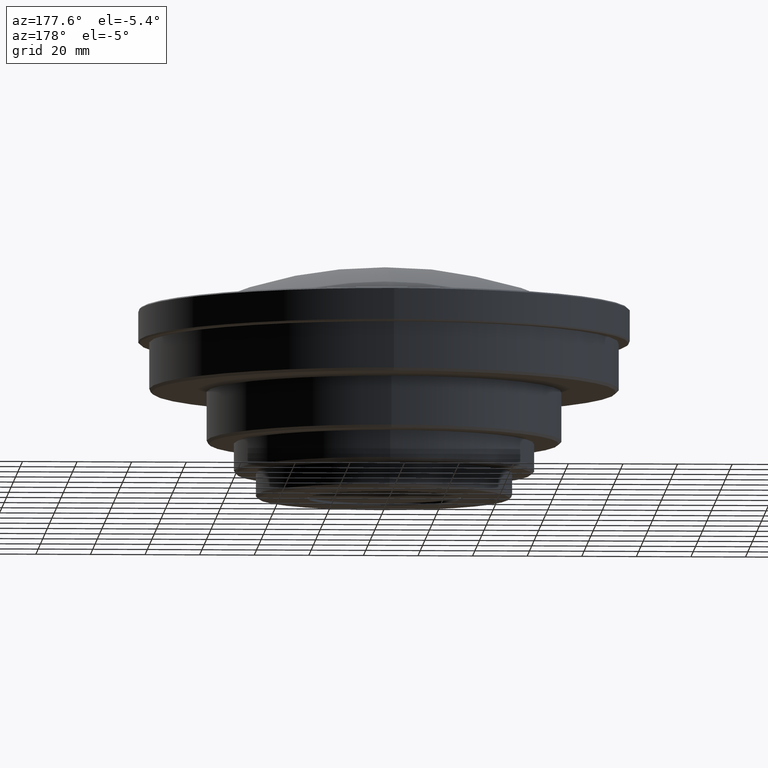
[diagram: clean part render]
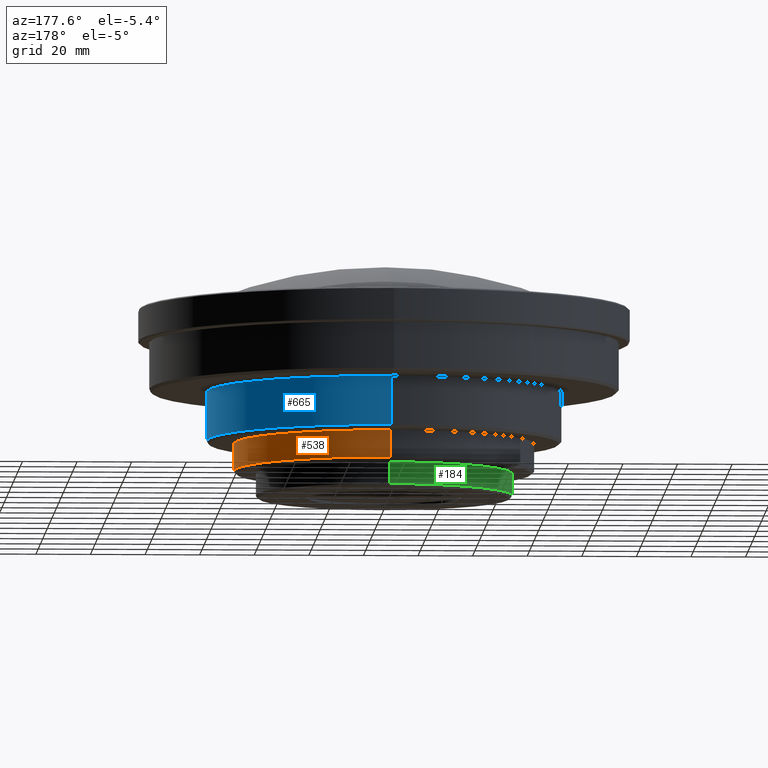
[diagram: same view with three faces highlighted in distinct colors, each labeled with its STEP entity id]
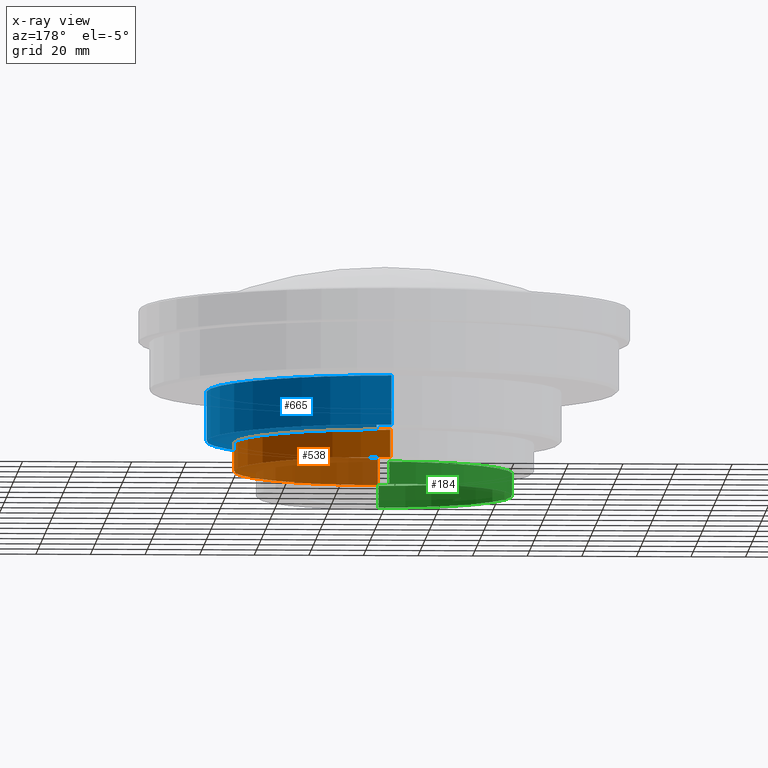
[diagram: x-ray of the same camera — body ghosted, the three highlighted faces saturated]
A machine part, auxiliary view with three faces highlighted in distinct colors.
The next image is the same camera in x-ray (body ghosted, the three faces saturated) — at least one of them is partly hidden behind the body in this view.
Their STEP definitions:

[orange] entity #538 — the highlighted cylindrical surface (partial cylindrical patch) has radius 55 mm, axis along (0, 0, -1).
#19 = CARTESIAN_POINT ( 'NONE',  ( 0.000000000000000000, 55.00000000000000000, 26.17999999918000142 ) ) ;
#21 = EDGE_LOOP ( 'NONE', ( #868, #413, #91, #739 ) ) ;
#34 = DIRECTION ( 'NONE',  ( 0.000000000000000000, -1.000000000000000000, 0.000000000000000000 ) ) ;
#91 = ORIENTED_EDGE ( 'NONE', *, *, #945, .F. ) ;
#132 = DIRECTION ( 'NONE',  ( 0.000000000000000000, 0.000000000000000000, -1.000000000000000000 ) ) ;
#141 = EDGE_CURVE ( 'NONE', #391, #1057, #768, .T. ) ;
#211 = AXIS2_PLACEMENT_3D ( 'NONE', #285, #132, #995 ) ;
#230 = VERTEX_POINT ( 'NONE', #19 ) ;
#262 = CIRCLE ( 'NONE', #640, 55.00000000000000000 ) ;
#272 = CARTESIAN_POINT ( 'NONE',  ( 0.000000000000000000, 55.00000000000000000, 16.17999999999999972 ) ) ;
#278 = DIRECTION ( 'NONE',  ( 0.000000000000000000, 0.000000000000000000, -1.000000000000000000 ) ) ;
#285 = CARTESIAN_POINT ( 'NONE',  ( 0.000000000000000000, -1.122797425597999966E-14, 16.17999999999999972 ) ) ;
#291 = FACE_OUTER_BOUND ( 'NONE', #21, .T. ) ;
#350 = DIRECTION ( 'NONE',  ( 0.000000000000000000, 0.000000000000000000, 1.000000000000000000 ) ) ;
#391 = VERTEX_POINT ( 'NONE', #765 ) ;
#413 = ORIENTED_EDGE ( 'NONE', *, *, #141, .F. ) ;
#538 = ADVANCED_FACE ( 'NONE', ( #291 ), #1071, .T. ) ;
#573 = AXIS2_PLACEMENT_3D ( 'NONE', #643, #993, #34 ) ;
#639 = CARTESIAN_POINT ( 'NONE',  ( 0.000000000000000000, -55.00000000000000000, 26.17999999918000142 ) ) ;
#640 = AXIS2_PLACEMENT_3D ( 'NONE', #697, #278, #876 ) ;
#643 = CARTESIAN_POINT ( 'NONE',  ( 0.000000000000000000, -1.122797425597999966E-14, 94.71599481863999870 ) ) ;
#697 = CARTESIAN_POINT ( 'NONE',  ( 0.000000000000000000, -1.122797425597999966E-14, 26.17999999918000142 ) ) ;
#739 = ORIENTED_EDGE ( 'NONE', *, *, #916, .T. ) ;
#762 = EDGE_CURVE ( 'NONE', #230, #1057, #262, .T. ) ;
#765 = CARTESIAN_POINT ( 'NONE',  ( 0.000000000000000000, -55.00000000000000000, 16.17999999999999972 ) ) ;
#768 = LINE ( 'NONE', #1112, #799 ) ;
#771 = VERTEX_POINT ( 'NONE', #272 ) ;
#776 = CARTESIAN_POINT ( 'NONE',  ( 0.000000000000000000, 55.00000000000000000, 16.17999999999999972 ) ) ;
#799 = VECTOR ( 'NONE', #877, 1000.000000000000000 ) ;
#868 = ORIENTED_EDGE ( 'NONE', *, *, #762, .T. ) ;
#876 = DIRECTION ( 'NONE',  ( 0.000000000000000000, 1.000000000000000000, 0.000000000000000000 ) ) ;
#877 = DIRECTION ( 'NONE',  ( 0.000000000000000000, 0.000000000000000000, 1.000000000000000000 ) ) ;
#916 = EDGE_CURVE ( 'NONE', #771, #230, #1116, .T. ) ;
#927 = VECTOR ( 'NONE', #350, 1000.000000000000000 ) ;
#945 = EDGE_CURVE ( 'NONE', #771, #391, #946, .T. ) ;
#946 = CIRCLE ( 'NONE', #211, 55.00000000000000000 ) ;
#993 = DIRECTION ( 'NONE',  ( 0.000000000000000000, 0.000000000000000000, -1.000000000000000000 ) ) ;
#995 = DIRECTION ( 'NONE',  ( 0.000000000000000000, 1.000000000000000000, 0.000000000000000000 ) ) ;
#1057 = VERTEX_POINT ( 'NONE', #639 ) ;
#1071 = CYLINDRICAL_SURFACE ( 'NONE', #573, 55.00000000000000000 ) ;
#1112 = CARTESIAN_POINT ( 'NONE',  ( 0.000000000000000000, -55.00000000000000000, 16.17999999999999972 ) ) ;
#1116 = LINE ( 'NONE', #776, #927 ) ;

[blue] entity #665 — the highlighted cylindrical surface (partial cylindrical patch) has radius 65 mm, axis along (0, 0, -1).
#3 = VECTOR ( 'NONE', #704, 1000.000000000000000 ) ;
#28 = CARTESIAN_POINT ( 'NONE',  ( 0.000000000000000000, -65.00000000000000000, 27.17999999999999972 ) ) ;
#47 = CARTESIAN_POINT ( 'NONE',  ( 0.000000000000000000, 65.00000000000000000, 27.17999999999999972 ) ) ;
#75 = FACE_OUTER_BOUND ( 'NONE', #336, .T. ) ;
#76 = ORIENTED_EDGE ( 'NONE', *, *, #730, .T. ) ;
#96 = EDGE_CURVE ( 'NONE', #173, #490, #656, .T. ) ;
#99 = AXIS2_PLACEMENT_3D ( 'NONE', #412, #306, #1024 ) ;
#135 = DIRECTION ( 'NONE',  ( 0.000000000000000000, 0.000000000000000000, 1.000000000000000000 ) ) ;
#137 = VECTOR ( 'NONE', #135, 1000.000000000000000 ) ;
#151 = AXIS2_PLACEMENT_3D ( 'NONE', #224, #407, #246 ) ;
#173 = VERTEX_POINT ( 'NONE', #990 ) ;
#181 = DIRECTION ( 'NONE',  ( 0.000000000000000000, 1.000000000000000000, 0.000000000000000000 ) ) ;
#202 = CARTESIAN_POINT ( 'NONE',  ( 0.000000000000000000, -65.00000000000000000, 27.17999999999999972 ) ) ;
#224 = CARTESIAN_POINT ( 'NONE',  ( 0.000000000000000000, -1.122797425597999966E-14, 45.17999999961999436 ) ) ;
#237 = EDGE_CURVE ( 'NONE', #490, #1079, #360, .T. ) ;
#246 = DIRECTION ( 'NONE',  ( 0.000000000000000000, 1.000000000000000000, 0.000000000000000000 ) ) ;
#306 = DIRECTION ( 'NONE',  ( 0.000000000000000000, 0.000000000000000000, -1.000000000000000000 ) ) ;
#336 = EDGE_LOOP ( 'NONE', ( #833, #582, #1003, #76 ) ) ;
#351 = CARTESIAN_POINT ( 'NONE',  ( 0.000000000000000000, -1.122797425597999966E-14, 27.17999999999999972 ) ) ;
#360 = LINE ( 'NONE', #202, #3 ) ;
#407 = DIRECTION ( 'NONE',  ( 0.000000000000000000, 0.000000000000000000, -1.000000000000000000 ) ) ;
#412 = CARTESIAN_POINT ( 'NONE',  ( 0.000000000000000000, -1.122797425597999966E-14, 94.71599481863999870 ) ) ;
#476 = CARTESIAN_POINT ( 'NONE',  ( 0.000000000000000000, -65.00000000000000000, 45.17999999961999436 ) ) ;
#490 = VERTEX_POINT ( 'NONE', #28 ) ;
#507 = LINE ( 'NONE', #47, #137 ) ;
#582 = ORIENTED_EDGE ( 'NONE', *, *, #237, .F. ) ;
#600 = DIRECTION ( 'NONE',  ( 0.000000000000000000, 0.000000000000000000, -1.000000000000000000 ) ) ;
#638 = CIRCLE ( 'NONE', #151, 65.00000000000000000 ) ;
#650 = EDGE_CURVE ( 'NONE', #994, #1079, #638, .T. ) ;
#656 = CIRCLE ( 'NONE', #705, 65.00000000000000000 ) ;
#664 = CYLINDRICAL_SURFACE ( 'NONE', #99, 65.00000000000000000 ) ;
#665 = ADVANCED_FACE ( 'NONE', ( #75 ), #664, .T. ) ;
#704 = DIRECTION ( 'NONE',  ( 0.000000000000000000, 0.000000000000000000, 1.000000000000000000 ) ) ;
#705 = AXIS2_PLACEMENT_3D ( 'NONE', #351, #600, #181 ) ;
#722 = CARTESIAN_POINT ( 'NONE',  ( 0.000000000000000000, 65.00000000000000000, 45.17999999961999436 ) ) ;
#730 = EDGE_CURVE ( 'NONE', #173, #994, #507, .T. ) ;
#833 = ORIENTED_EDGE ( 'NONE', *, *, #650, .T. ) ;
#990 = CARTESIAN_POINT ( 'NONE',  ( 0.000000000000000000, 65.00000000000000000, 27.17999999999999972 ) ) ;
#994 = VERTEX_POINT ( 'NONE', #722 ) ;
#1003 = ORIENTED_EDGE ( 'NONE', *, *, #96, .F. ) ;
#1024 = DIRECTION ( 'NONE',  ( 0.000000000000000000, -1.000000000000000000, 0.000000000000000000 ) ) ;
#1079 = VERTEX_POINT ( 'NONE', #476 ) ;

[green] entity #184 — the highlighted cylindrical surface (partial cylindrical patch) has radius 47 mm, axis along (0, 0, -1).
#2 = EDGE_LOOP ( 'NONE', ( #396, #834, #183, #382 ) ) ;
#31 = DIRECTION ( 'NONE',  ( 0.000000000000000000, 1.000000000000000000, 0.000000000000000000 ) ) ;
#38 = CARTESIAN_POINT ( 'NONE',  ( 0.000000000000000000, -1.122797425597999966E-14, 94.71599481863999870 ) ) ;
#57 = EDGE_CURVE ( 'NONE', #1029, #649, #177, .T. ) ;
#72 = CARTESIAN_POINT ( 'NONE',  ( 0.000000000000000000, 47.00000000000000000, 15.17999999909999964 ) ) ;
#105 = CYLINDRICAL_SURFACE ( 'NONE', #479, 47.00000000000000000 ) ;
#177 = LINE ( 'NONE', #866, #890 ) ;
#178 = DIRECTION ( 'NONE',  ( 0.000000000000000000, 8.627676351350999926E-11, 1.000000000000000000 ) ) ;
#183 = ORIENTED_EDGE ( 'NONE', *, *, #698, .F. ) ;
#184 = ADVANCED_FACE ( 'NONE', ( #623 ), #105, .T. ) ;
#258 = DIRECTION ( 'NONE',  ( 0.000000000000000000, -8.627409897825000708E-11, 1.000000000000000000 ) ) ;
#302 = CARTESIAN_POINT ( 'NONE',  ( 0.000000000000000000, -1.122797425597999966E-14, 7.179999999999999716 ) ) ;
#326 = VERTEX_POINT ( 'NONE', #72 ) ;
#339 = CARTESIAN_POINT ( 'NONE',  ( 0.000000000000000000, 46.99999999930999905, 7.179999999309999659 ) ) ;
#355 = DIRECTION ( 'NONE',  ( 0.000000000000000000, 0.000000000000000000, -1.000000000000000000 ) ) ;
#361 = EDGE_CURVE ( 'NONE', #1039, #326, #960, .T. ) ;
#382 = ORIENTED_EDGE ( 'NONE', *, *, #361, .F. ) ;
#396 = ORIENTED_EDGE ( 'NONE', *, *, #941, .T. ) ;
#417 = DIRECTION ( 'NONE',  ( 0.000000000000000000, 1.000000000000000000, 0.000000000000000000 ) ) ;
#442 = AXIS2_PLACEMENT_3D ( 'NONE', #302, #632, #31 ) ;
#445 = DIRECTION ( 'NONE',  ( 0.000000000000000000, -1.000000000000000000, 0.000000000000000000 ) ) ;
#462 = CIRCLE ( 'NONE', #746, 47.00000000000000000 ) ;
#479 = AXIS2_PLACEMENT_3D ( 'NONE', #38, #355, #445 ) ;
#509 = VECTOR ( 'NONE', #178, 1000.000000000000000 ) ;
#623 = FACE_OUTER_BOUND ( 'NONE', #2, .T. ) ;
#632 = DIRECTION ( 'NONE',  ( 0.000000000000000000, 0.000000000000000000, 1.000000000000000000 ) ) ;
#649 = VERTEX_POINT ( 'NONE', #853 ) ;
#658 = CIRCLE ( 'NONE', #442, 47.00000000000000000 ) ;
#698 = EDGE_CURVE ( 'NONE', #326, #649, #462, .T. ) ;
#746 = AXIS2_PLACEMENT_3D ( 'NONE', #928, #933, #417 ) ;
#834 = ORIENTED_EDGE ( 'NONE', *, *, #57, .T. ) ;
#853 = CARTESIAN_POINT ( 'NONE',  ( 0.000000000000000000, -47.00000000000000000, 15.17999999909999964 ) ) ;
#866 = CARTESIAN_POINT ( 'NONE',  ( 0.000000000000000000, -46.99999999930999905, 7.179999999309999659 ) ) ;
#887 = CARTESIAN_POINT ( 'NONE',  ( 0.000000000000000000, -46.99999999930999905, 7.179999999309999659 ) ) ;
#890 = VECTOR ( 'NONE', #258, 1000.000000000000000 ) ;
#928 = CARTESIAN_POINT ( 'NONE',  ( 0.000000000000000000, -1.122797425597999966E-14, 15.17999999909999964 ) ) ;
#933 = DIRECTION ( 'NONE',  ( 0.000000000000000000, 0.000000000000000000, 1.000000000000000000 ) ) ;
#941 = EDGE_CURVE ( 'NONE', #1039, #1029, #658, .T. ) ;
#960 = LINE ( 'NONE', #339, #509 ) ;
#1029 = VERTEX_POINT ( 'NONE', #887 ) ;
#1039 = VERTEX_POINT ( 'NONE', #1063 ) ;
#1063 = CARTESIAN_POINT ( 'NONE',  ( 0.000000000000000000, 46.99999999930999905, 7.179999999309999659 ) ) ;